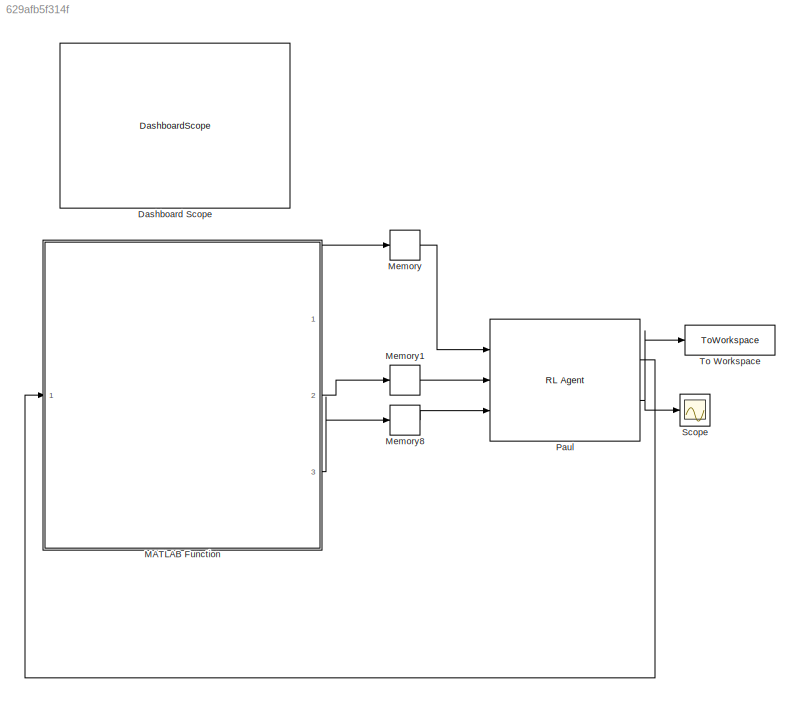
MODEL slx_629afb5f314f
KIND model
CONFIG AbsTol = auto
CONFIG EnableMultiTasking = off
CONFIG FixedStep = auto
CONFIG MaxStep = auto
CONFIG MinStep = auto
CONFIG RelTol = 1e-3
CONFIG SampleTimeConstraint = Unconstrained
CONFIG SolverName = VariableStepAuto
CONFIG StartTime = 0.0
CONFIG StopTime = 1000
WORKSPACE source: mxarray member
WORKSPACE appleBoardInit = 0
WORKSPACE snakeBoardInit = 0
BLOCK [DashboardScope] Dashboard Scope
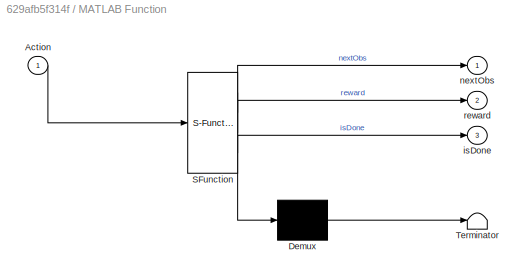
BLOCK [SubSystem] MATLAB Function
  ErrorFcn = Stateflow.Translate.translate
  PermitHierarchicalResolution = ExplicitOnly
  Ports = [1, 3]
  RequestExecContextInheritance = off
  SFBlockType = MATLAB Function
  TreatAsAtomicUnit = on
BLOCK [Demux] MATLAB Function/ Demux 
  Outputs = 1
  Ports = [1, 1]
BLOCK [S-Function] MATLAB Function/ SFunction 
  EnableBusSupport = on
  FunctionName = sf_sfun
  PortCounts = [1 4]
  Ports = [1, 4]
  SFcnIsStateOwnerBlock = off
  SFunctionDeploymentMode = off
  Tag = Stateflow S-Function 2
BLOCK [Terminator] MATLAB Function/ Terminator 
BLOCK [Inport] MATLAB Function/Action
BLOCK [Outport] MATLAB Function/isDone
  Port = 3
BLOCK [Outport] MATLAB Function/nextObs
BLOCK [Outport] MATLAB Function/reward
  Port = 2
BLOCK [Memory] Memory
BLOCK [Memory] Memory1
BLOCK [Memory] Memory8
BLOCK [Reference] Paul  REF=rllib/RL Agent
  Ports = [3, 2]
  SourceBlock = rllib/RL Agent
  SourceProductBaseCode = RL
  SourceType = RL Agent
BLOCK [Scope] Scope
  Floating = off
  NumInputPorts = 1
  Ports = [1]
  ScopeSpecificationString = Simulink.scopes.TimeScopeBlockCfg('CurrentConfiguration', extmgr.ConfigurationSet(extmgr.Configuration('Core','General UI',true),extmgr.Configuration('Core','Source UI',true),extmgr.Configuration('Sources','WiredSimulink',true),extmgr.Configuration('Visuals','Time Domain',true,'SerializedDisplays',{struct('MinYLimReal','-0.125','MaxYLimReal','1.125','YLabelReal','','MinYLimMag','0.00000','MaxYLimM...<+1347ch>
BLOCK [ToWorkspace] To Workspace
  FixptAsFi = on
  MaxDataPoints = inf
  Ports = [1]
  SampleTime = -1
  SaveFormat = Timeseries
  VariableName = Reward
LINE MATLAB Function:1 -> Memory:1
LINE MATLAB Function:2 -> Memory1:1
LINE MATLAB Function:3 -> Memory8:1
LINE Memory1:1 -> Paul:2
LINE Memory8:1 -> Paul:3
LINE Memory:1 -> Paul:1
LINE Paul:1 -> MATLAB Function:1
NET Paul:2 -> Scope:1, To Workspace:1
note: NET lines group one-source signal fan-out (src -> all destinations, sorted); 1:1 wires keep LINE
CHART MATLAB Function states=1 transitions=1
  STATE_LABEL 'eML_blk_kernel()'
  STATE_LABEL 'SCRIPT:\n% function [nextObs, reward, count, snakeBoard, appleLoc, isDone, snakeHead, snakeTail, snakeLength] = ...\n%     playGame(Action, count, snakeBoard, appleLoc, snakeHead, snakeTail, snakeLength)\n\nfunction [nextObs, reward, isDone] = playGame(Action)\n\nreward = 0;\n\npersistent count previousMove;\npersistent snakeBoard appleLoc snakeHead snakeTail snakeLength;\n\nBoardSize = 10;\ngameBoard = zeros...<+3608ch>'
CHART  states=0 transitions=0
